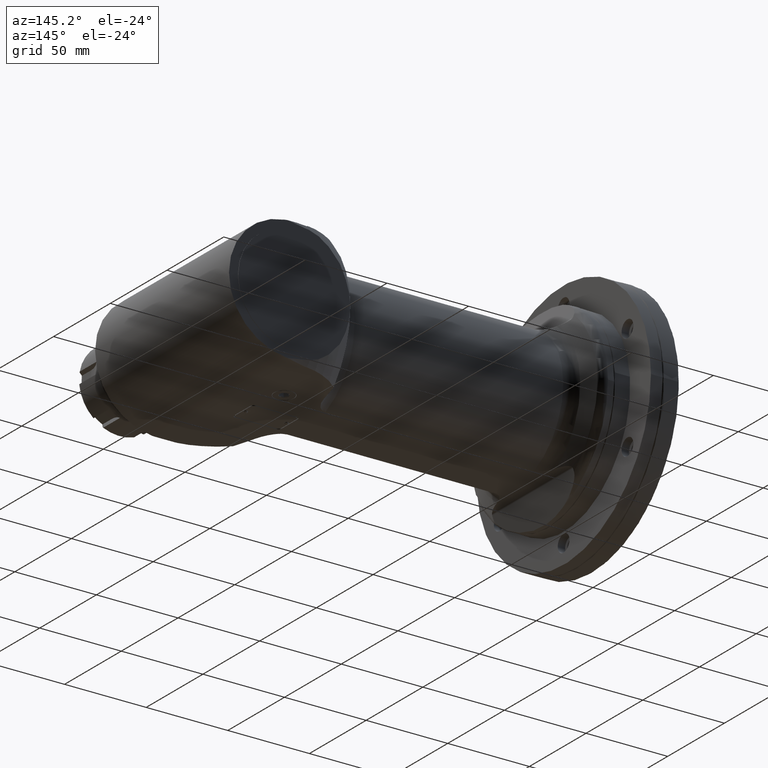
[diagram: clean part render]
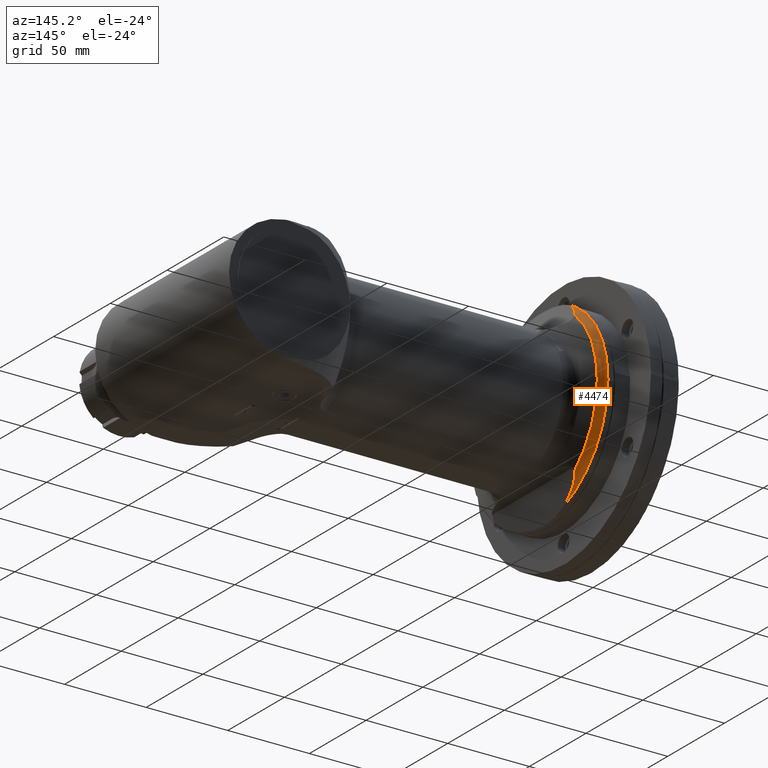
[diagram: same view with one face highlighted and labeled with its STEP entity id]
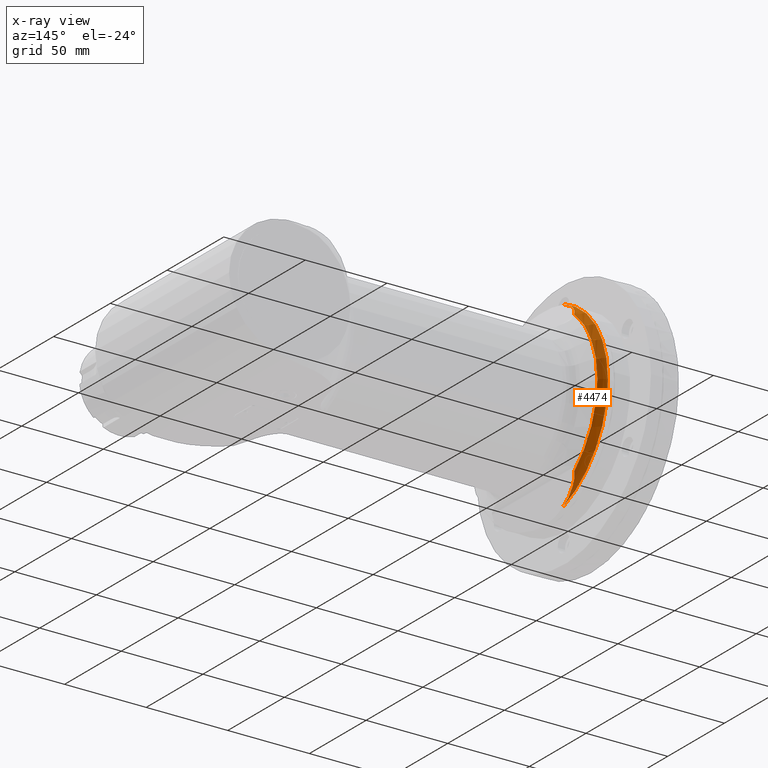
[diagram: x-ray of the same camera — body ghosted, the highlighted face saturated]
A machine part, auxiliary view. The second image highlights one B-rep face of the part: STEP entity #4474.
The next image is the same camera in x-ray: the body ghosted, the highlighted face saturated — about 0% of this face is hidden behind the body in this view.
In plain terms, the highlighted toroidal blend (fillet) surface has major radius 54 mm and minor (blend) radius 5 mm.
Its self-contained STEP definition (entity closure, byte-faithful):
#27=TOROIDAL_SURFACE('',#4827,54.,5.);
#359=B_SPLINE_CURVE_WITH_KNOTS('',3,(#6971,#6972,#6973,#6974,#6975,#6976,
#6977,#6978,#6979,#6980,#6981,#6982,#6983,#6984,#6985,#6986,#6987,#6988),
 .UNSPECIFIED.,.F.,.F.,(4,2,2,2,2,2,2,2,4),(1.83524515230335,1.94782364696368,
2.30536823861081,2.66291283025793,3.05831877706774,3.45372472387754,3.75401914312324,
3.89268274483142,3.90047097227725),.UNSPECIFIED.);
#369=B_SPLINE_CURVE_WITH_KNOTS('',3,(#7216,#7217,#7218,#7219,#7220,#7221,
#7222,#7223,#7224,#7225,#7226,#7227,#7228,#7229,#7230,#7231,#7232,#7233),
 .UNSPECIFIED.,.F.,.F.,(4,2,2,2,2,2,2,2,4),(1.83524515230335,1.94782364696368,
2.30536823861081,2.66291283025793,3.05831877706774,3.45372472387754,3.75401914312324,
3.89268274483142,3.90047097227725),.UNSPECIFIED.);
#411=FACE_OUTER_BOUND('',#702,.T.);
#702=EDGE_LOOP('',(#3093,#3094,#3095,#3096,#3097));
#1083=CIRCLE('',#4826,56.1130913087);
#1084=CIRCLE('',#4828,59.);
#1085=CIRCLE('',#4829,59.);
#1875=VERTEX_POINT('',#6968);
#1876=VERTEX_POINT('',#6970);
#1913=VERTEX_POINT('',#7208);
#1914=VERTEX_POINT('',#7212);
#1915=VERTEX_POINT('',#7213);
#2334=EDGE_CURVE('',#1876,#1875,#359,.T.);
#2380=EDGE_CURVE('',#1875,#1913,#1083,.T.);
#2381=EDGE_CURVE('',#1914,#1915,#1084,.T.);
#2382=EDGE_CURVE('',#1915,#1876,#1085,.T.);
#2383=EDGE_CURVE('',#1914,#1913,#369,.T.);
#3093=ORIENTED_EDGE('',*,*,#2381,.T.);
#3094=ORIENTED_EDGE('',*,*,#2382,.T.);
#3095=ORIENTED_EDGE('',*,*,#2334,.T.);
#3096=ORIENTED_EDGE('',*,*,#2380,.T.);
#3097=ORIENTED_EDGE('',*,*,#2383,.F.);
#4474=ADVANCED_FACE('',(#411),#27,.T.);
#4826=AXIS2_PLACEMENT_3D('',#7210,#5459,#5460);
#4827=AXIS2_PLACEMENT_3D('',#7211,#5461,#5462);
#4828=AXIS2_PLACEMENT_3D('',#7214,#5463,#5464);
#4829=AXIS2_PLACEMENT_3D('',#7215,#5465,#5466);
#5459=DIRECTION('center_axis',(-1.,0.,0.));
#5460=DIRECTION('ref_axis',(0.,1.,0.));
#5461=DIRECTION('center_axis',(1.,0.,0.));
#5462=DIRECTION('ref_axis',(0.,1.,-1.22464679914735E-16));
#5463=DIRECTION('center_axis',(1.,0.,0.));
#5464=DIRECTION('ref_axis',(0.,1.,0.));
#5465=DIRECTION('center_axis',(1.,0.,0.));
#5466=DIRECTION('ref_axis',(0.,1.,0.));
#6968=CARTESIAN_POINT('',(-189.1538123689,35.62530817393,43.35339010656));
#6970=CARTESIAN_POINT('',(-193.685351304,19.15588865251,55.80369100635));
#6971=CARTESIAN_POINT('Ctrl Pts',(-193.68535130402,19.1558886525135,55.8036910063528));
#6972=CARTESIAN_POINT('Ctrl Pts',(-193.64044549824,19.5153045203275,55.6803133189701));
#6973=CARTESIAN_POINT('Ctrl Pts',(-193.594493744902,19.8699111503599,55.5540619142909));
#6974=CARTESIAN_POINT('Ctrl Pts',(-193.398710276412,21.3286952802156,55.0161512555124));
#6975=CARTESIAN_POINT('Ctrl Pts',(-193.219926290946,22.5303004937655,54.5249462924839));
#6976=CARTESIAN_POINT('Ctrl Pts',(-192.823756779127,24.8771513669423,53.4364795044851));
#6977=CARTESIAN_POINT('Ctrl Pts',(-192.606164106202,26.0220980476712,52.8386485489852));
#6978=CARTESIAN_POINT('Ctrl Pts',(-192.154604481032,28.1566130198652,51.5979986752934));
#6979=CARTESIAN_POINT('Ctrl Pts',(-191.872983367648,29.348370158103,50.8242510254272));
#6980=CARTESIAN_POINT('Ctrl Pts',(-191.251910645058,31.587567143657,49.1178677442722));
#6981=CARTESIAN_POINT('Ctrl Pts',(-190.912529703587,32.6351745421485,48.1854262709895));
#6982=CARTESIAN_POINT('Ctrl Pts',(-190.309513546922,34.1415743870005,46.5286529969866));
#6983=CARTESIAN_POINT('Ctrl Pts',(-189.976625518735,34.8455033115687,45.6140506563339));
#6984=CARTESIAN_POINT('Ctrl Pts',(-189.519380846223,35.4401876032742,44.3577812434424));
#6985=CARTESIAN_POINT('Ctrl Pts',(-189.339064673932,35.6125011300581,43.8623666317113));
#6986=CARTESIAN_POINT('Ctrl Pts',(-189.172157963242,35.6253904289544,43.403794212935));
#6987=CARTESIAN_POINT('Ctrl Pts',(-189.163061303596,35.6256255433554,43.3788013459649));
#6988=CARTESIAN_POINT('Ctrl Pts',(-189.153812368844,35.6253081739962,43.3533901065795));
#7208=CARTESIAN_POINT('',(-189.1538123689,35.62530817393,-43.35339010656));
#7210=CARTESIAN_POINT('Origin',(-189.1538123689,0.,0.));
#7211=CARTESIAN_POINT('Origin',(-193.685351304,0.,0.));
#7212=CARTESIAN_POINT('',(-193.685351304,19.15588865251,-55.80369100635));
#7213=CARTESIAN_POINT('',(-193.685351304,59.,7.22541611496938E-15));
#7214=CARTESIAN_POINT('Origin',(-193.685351304,0.,0.));
#7215=CARTESIAN_POINT('Origin',(-193.685351304,0.,0.));
#7216=CARTESIAN_POINT('Ctrl Pts',(-193.68535130402,19.1558886525135,-55.8036910063528));
#7217=CARTESIAN_POINT('Ctrl Pts',(-193.64044549824,19.5153045203275,-55.6803133189701));
#7218=CARTESIAN_POINT('Ctrl Pts',(-193.594493744902,19.8699111503599,-55.5540619142909));
#7219=CARTESIAN_POINT('Ctrl Pts',(-193.398710276412,21.3286952802156,-55.0161512555124));
#7220=CARTESIAN_POINT('Ctrl Pts',(-193.219926290946,22.5303004937655,-54.5249462924839));
#7221=CARTESIAN_POINT('Ctrl Pts',(-192.823756779127,24.8771513669423,-53.4364795044851));
#7222=CARTESIAN_POINT('Ctrl Pts',(-192.606164106202,26.0220980476712,-52.8386485489852));
#7223=CARTESIAN_POINT('Ctrl Pts',(-192.154604481032,28.1566130198652,-51.5979986752934));
#7224=CARTESIAN_POINT('Ctrl Pts',(-191.872983367648,29.348370158103,-50.8242510254272));
#7225=CARTESIAN_POINT('Ctrl Pts',(-191.251910645058,31.587567143657,-49.1178677442722));
#7226=CARTESIAN_POINT('Ctrl Pts',(-190.912529703587,32.6351745421485,-48.1854262709895));
#7227=CARTESIAN_POINT('Ctrl Pts',(-190.309513546922,34.1415743870005,-46.5286529969866));
#7228=CARTESIAN_POINT('Ctrl Pts',(-189.976625518735,34.8455033115687,-45.6140506563339));
#7229=CARTESIAN_POINT('Ctrl Pts',(-189.519380846223,35.4401876032742,-44.3577812434424));
#7230=CARTESIAN_POINT('Ctrl Pts',(-189.339064673932,35.6125011300581,-43.8623666317113));
#7231=CARTESIAN_POINT('Ctrl Pts',(-189.172157963242,35.6253904289544,-43.403794212935));
#7232=CARTESIAN_POINT('Ctrl Pts',(-189.163061303596,35.6256255433554,-43.3788013459649));
#7233=CARTESIAN_POINT('Ctrl Pts',(-189.153812368844,35.6253081739962,-43.3533901065795));